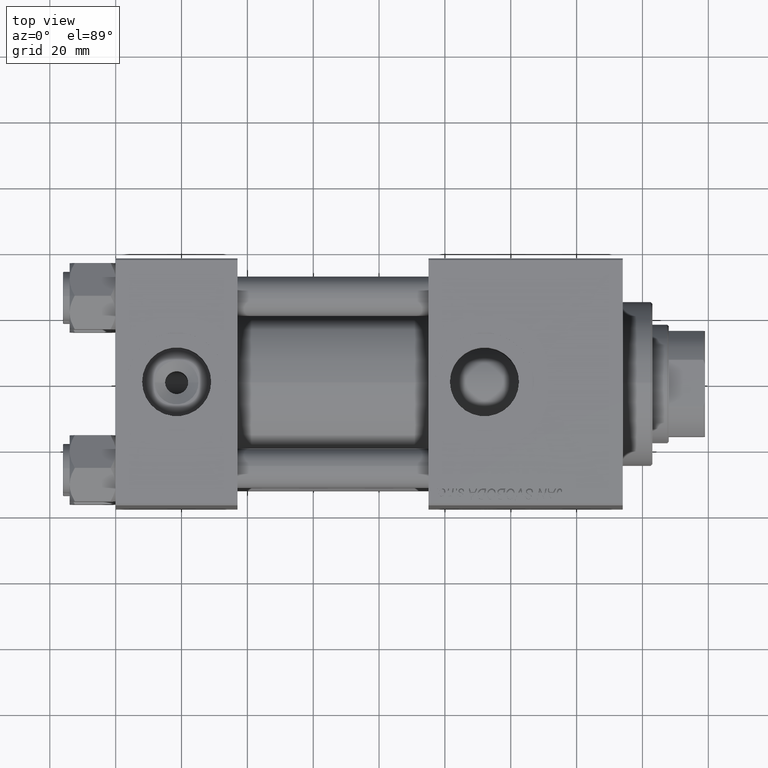
[diagram: clean part render]
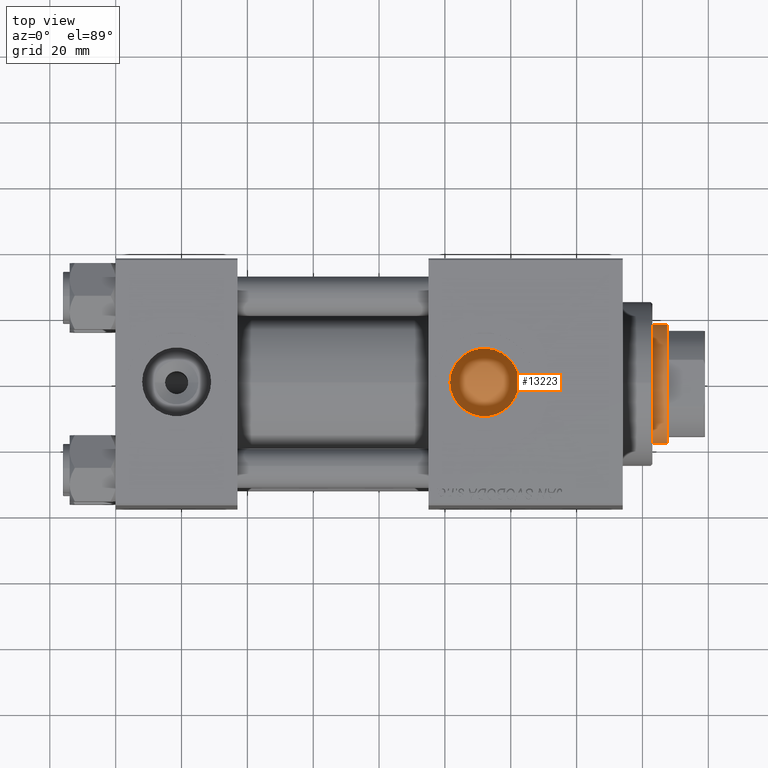
[diagram: same view with one face highlighted and labeled with its STEP entity id]
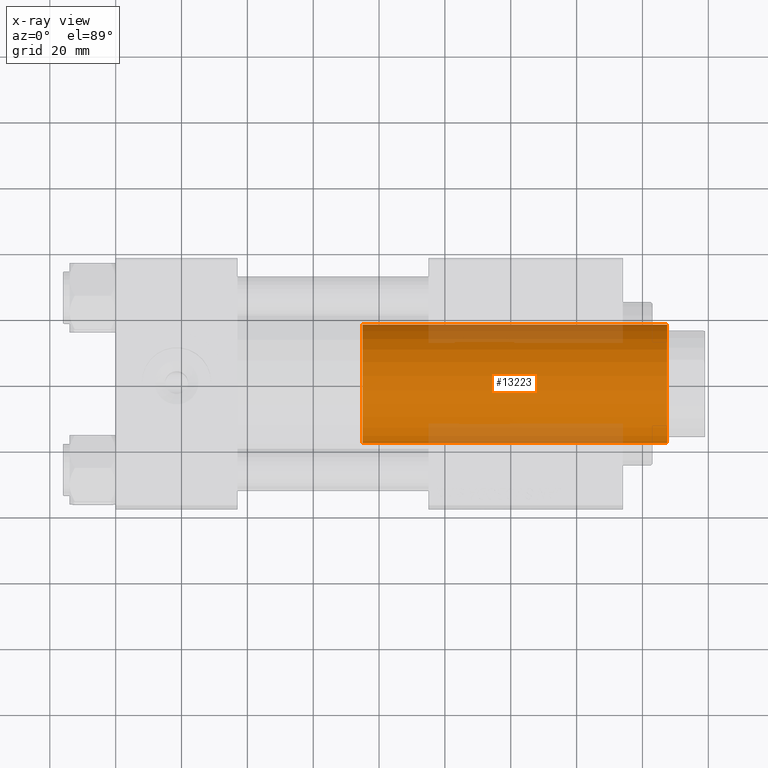
[diagram: x-ray of the same camera — body ghosted, the highlighted face saturated]
A machine part, top view. The second image highlights one B-rep face of the part: STEP entity #13223.
The next image is the same camera in x-ray: the body ghosted, the highlighted face saturated — about 20% of this face is hidden behind the body in this view.
In plain terms, the highlighted cylindrical surface (partial cylindrical patch) has radius 18 mm, axis along (-1, 0, 0).
Its self-contained STEP definition (entity closure, byte-faithful):
#2199 = DIRECTION ( 'NONE',  ( -0.000000000000000000, -0.000000000000000000, -1.000000000000000000 ) ) ;
#6024 = DIRECTION ( 'NONE',  ( -1.000000000000000000, 0.000000000000000000, 0.000000000000000000 ) ) ;
#6301 = EDGE_CURVE ( 'NONE', #17005, #19197, #48351, .T. ) ;
#7451 = DIRECTION ( 'NONE',  ( 0.000000000000000000, 0.000000000000000000, -1.000000000000000000 ) ) ;
#7541 = VERTEX_POINT ( 'NONE', #27033 ) ;
#8553 = DIRECTION ( 'NONE',  ( -0.000000000000000000, -0.000000000000000000, -1.000000000000000000 ) ) ;
#10411 = ORIENTED_EDGE ( 'NONE', *, *, #38475, .T. ) ;
#11133 = CARTESIAN_POINT ( 'NONE',  ( -18.00000000000000000, 0.000000000000000000, 131.0000000000000000 ) ) ;
#12827 = CIRCLE ( 'NONE', #49269, 18.00000000000000000 ) ;
#13223 = ADVANCED_FACE ( 'NONE', ( #29627 ), #25576, .T. ) ;
#13605 = CARTESIAN_POINT ( 'NONE',  ( 18.00000000000000000, 2.204364238465235033E-15, 131.0000000000000000 ) ) ;
#14968 = AXIS2_PLACEMENT_3D ( 'NONE', #41030, #2199, #6024 ) ;
#17005 = VERTEX_POINT ( 'NONE', #22784 ) ;
#19197 = VERTEX_POINT ( 'NONE', #24062 ) ;
#19614 = VECTOR ( 'NONE', #8553, 1000.000000000000000 ) ;
#21819 = EDGE_CURVE ( 'NONE', #22123, #7541, #45886, .T. ) ;
#22123 = VERTEX_POINT ( 'NONE', #35645 ) ;
#22702 = DIRECTION ( 'NONE',  ( 1.000000000000000000, 0.000000000000000000, 0.000000000000000000 ) ) ;
#22784 = CARTESIAN_POINT ( 'NONE',  ( 18.00000000000000000, 2.204364238465235033E-15, 130.5000000000000568 ) ) ;
#24062 = CARTESIAN_POINT ( 'NONE',  ( 18.00000000000000000, 2.204364238465235033E-15, 38.00000000000000000 ) ) ;
#25576 = CYLINDRICAL_SURFACE ( 'NONE', #14968, 18.00000000000000000 ) ;
#26615 = DIRECTION ( 'NONE',  ( -0.000000000000000000, -0.000000000000000000, -1.000000000000000000 ) ) ;
#27033 = CARTESIAN_POINT ( 'NONE',  ( -18.00000000000000000, 0.000000000000000000, 38.00000000000000000 ) ) ;
#28134 = CARTESIAN_POINT ( 'NONE',  ( 0.000000000000000000, 0.000000000000000000, 38.00000000000000000 ) ) ;
#29267 = EDGE_CURVE ( 'NONE', #7541, #19197, #12827, .T. ) ;
#29627 = FACE_OUTER_BOUND ( 'NONE', #30986, .T. ) ;
#30986 = EDGE_LOOP ( 'NONE', ( #42644, #10411, #37750, #44107 ) ) ;
#34595 = CARTESIAN_POINT ( 'NONE',  ( 0.000000000000000000, 0.000000000000000000, 130.5000000000000568 ) ) ;
#34605 = VECTOR ( 'NONE', #26615, 1000.000000000000000 ) ;
#35645 = CARTESIAN_POINT ( 'NONE',  ( -18.00000000000000000, 0.000000000000000000, 130.5000000000000568 ) ) ;
#37750 = ORIENTED_EDGE ( 'NONE', *, *, #21819, .T. ) ;
#38475 = EDGE_CURVE ( 'NONE', #17005, #22123, #40546, .T. ) ;
#40546 = CIRCLE ( 'NONE', #47020, 18.00000000000000000 ) ;
#41030 = CARTESIAN_POINT ( 'NONE',  ( 0.000000000000000000, 0.000000000000000000, 131.0000000000000000 ) ) ;
#42581 = DIRECTION ( 'NONE',  ( 0.000000000000000000, 0.000000000000000000, 1.000000000000000000 ) ) ;
#42644 = ORIENTED_EDGE ( 'NONE', *, *, #6301, .F. ) ;
#44107 = ORIENTED_EDGE ( 'NONE', *, *, #29267, .T. ) ;
#45886 = LINE ( 'NONE', #11133, #34605 ) ;
#47020 = AXIS2_PLACEMENT_3D ( 'NONE', #34595, #7451, #22702 ) ;
#47133 = DIRECTION ( 'NONE',  ( 1.000000000000000000, 0.000000000000000000, 0.000000000000000000 ) ) ;
#48351 = LINE ( 'NONE', #13605, #19614 ) ;
#49269 = AXIS2_PLACEMENT_3D ( 'NONE', #28134, #42581, #47133 ) ;